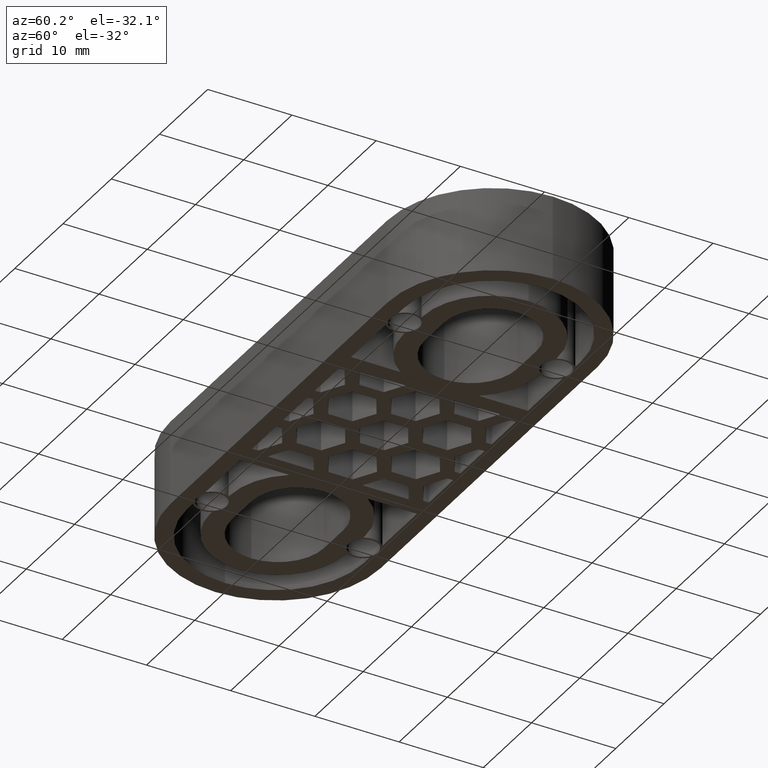
[diagram: clean part render]
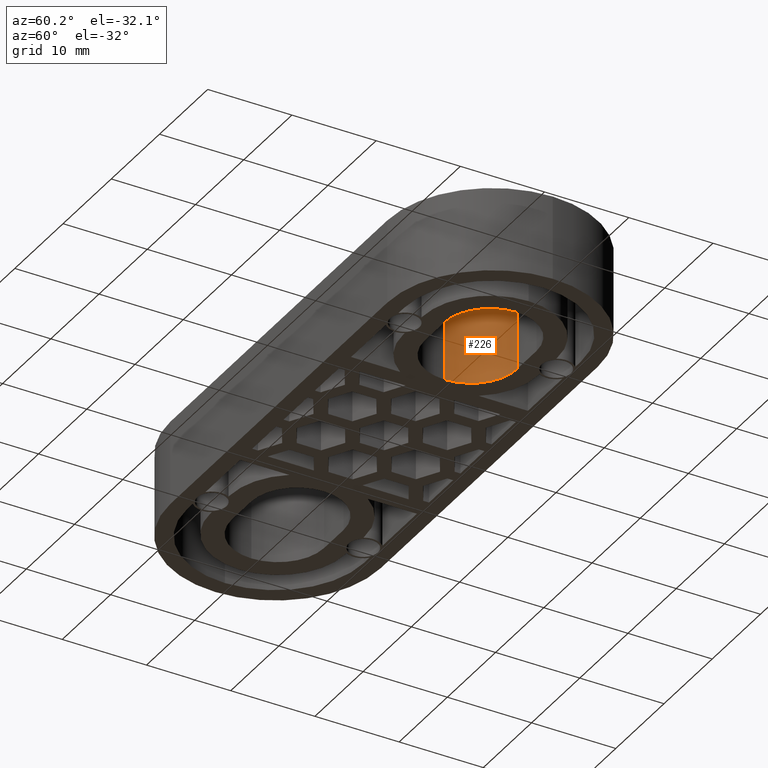
[diagram: same view with one face highlighted and labeled with its STEP entity id]
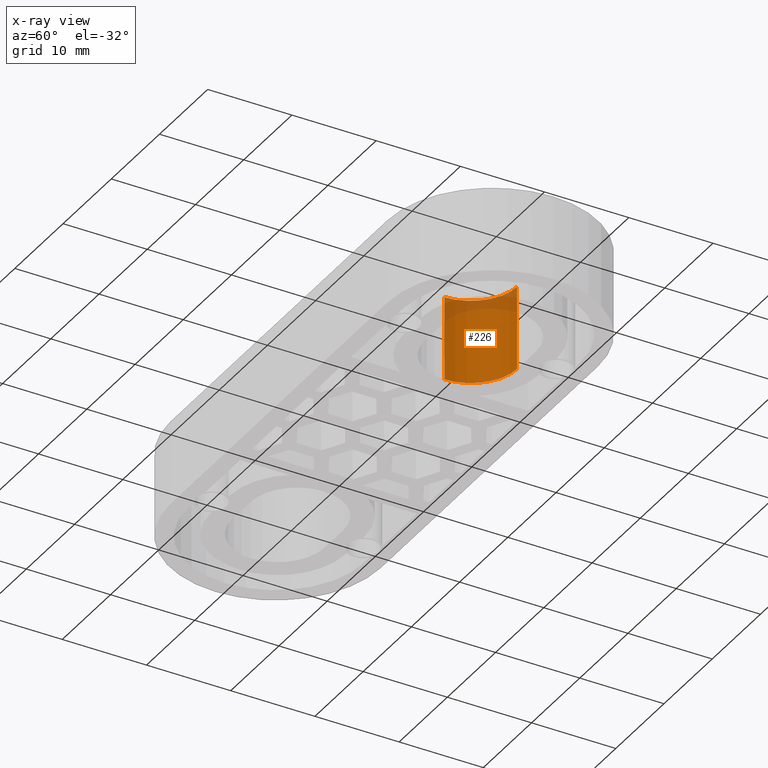
[diagram: x-ray of the same camera — body ghosted, the highlighted face saturated]
A machine part, auxiliary view. The second image highlights one B-rep face of the part: STEP entity #226.
The next image is the same camera in x-ray: the body ghosted, the highlighted face saturated — about 17% of this face is hidden behind the body in this view.
In plain terms, the highlighted cylindrical surface (partial cylindrical patch) has radius 5.5 mm, axis along (-0, -0, -1).
Its self-contained STEP definition (entity closure, byte-faithful):
#226 = ADVANCED_FACE( '', ( #634 ), #635, .F. );
#634 = FACE_OUTER_BOUND( '', #1110, .T. );
#635 = CYLINDRICAL_SURFACE( '', #1111, 5.50000000000000 );
#1110 = EDGE_LOOP( '', ( #2517, #2518, #2519, #2520 ) );
#1111 = AXIS2_PLACEMENT_3D( '', #2521, #2522, #2523 );
#2517 = ORIENTED_EDGE( '', *, *, #3432, .F. );
#2518 = ORIENTED_EDGE( '', *, *, #3238, .F. );
#2519 = ORIENTED_EDGE( '', *, *, #3431, .T. );
#2520 = ORIENTED_EDGE( '', *, *, #2990, .F. );
#2521 = CARTESIAN_POINT( '', ( 17.2500000000000, 0.00254079757291796, -9.99999999516950E-006 ) );
#2522 = DIRECTION( '', ( -1.44762238050084E-048, -6.12303176911189E-017, -1.00000000000000 ) );
#2523 = DIRECTION( '', ( -1.15648231731787E-016, 1.00000000000000, -6.12303176911189E-017 ) );
#2990 = EDGE_CURVE( '', #3553, #3544, #3555, .F. );
#3238 = EDGE_CURVE( '', #4011, #4013, #4014, .T. );
#3431 = EDGE_CURVE( '', #4011, #3544, #4298, .T. );
#3432 = EDGE_CURVE( '', #4013, #3553, #4299, .T. );
#3544 = VERTEX_POINT( '', #4453 );
#3553 = VERTEX_POINT( '', #4464 );
#3555 = CIRCLE( '', #4466, 5.50000000000000 );
#4011 = VERTEX_POINT( '', #5111 );
#4013 = VERTEX_POINT( '', #5114 );
#4014 = CIRCLE( '', #5115, 5.50000000000000 );
#4298 = LINE( '', #5588, #5589 );
#4299 = LINE( '', #5590, #5591 );
#4453 = CARTESIAN_POINT( '', ( 17.2500000000000, 5.50254079757292, 9.99999999999999 ) );
#4464 = CARTESIAN_POINT( '', ( 11.7500000000000, 0.00254079757292837, 9.99999999999999 ) );
#4466 = AXIS2_PLACEMENT_3D( '', #5792, #5793, #5794 );
#5111 = CARTESIAN_POINT( '', ( 17.2500000000000, 5.50254079757292, -9.99999999550626E-006 ) );
#5114 = CARTESIAN_POINT( '', ( 11.7500000000000, 0.00254079757292750, -9.99999999516950E-006 ) );
#5115 = AXIS2_PLACEMENT_3D( '', #6156, #6157, #6158 );
#5588 = CARTESIAN_POINT( '', ( 17.2500000000000, 5.50254079757292, -9.99999999550626E-006 ) );
#5589 = VECTOR( '', #6357, 1000.00000000000 );
#5590 = CARTESIAN_POINT( '', ( 11.7500000000000, 0.00254079757292750, -9.99999999516950E-006 ) );
#5591 = VECTOR( '', #6358, 1000.00000000000 );
#5792 = CARTESIAN_POINT( '', ( 17.2500000000000, 0.00254079757291883, 9.99999999999999 ) );
#5793 = DIRECTION( '', ( 0.000000000000000, 6.12303176911189E-017, 1.00000000000000 ) );
#5794 = DIRECTION( '', ( 0.000000000000000, -1.00000000000000, 6.12303176911189E-017 ) );
#6156 = CARTESIAN_POINT( '', ( 17.2500000000000, 0.00254079757291796, -9.99999999516950E-006 ) );
#6157 = DIRECTION( '', ( 0.000000000000000, 6.12303176911189E-017, 1.00000000000000 ) );
#6158 = DIRECTION( '', ( 1.15648231731787E-016, -1.00000000000000, 6.12303176911189E-017 ) );
#6357 = DIRECTION( '', ( 0.000000000000000, 6.12303176911189E-017, 1.00000000000000 ) );
#6358 = DIRECTION( '', ( 0.000000000000000, 6.12303176911189E-017, 1.00000000000000 ) );